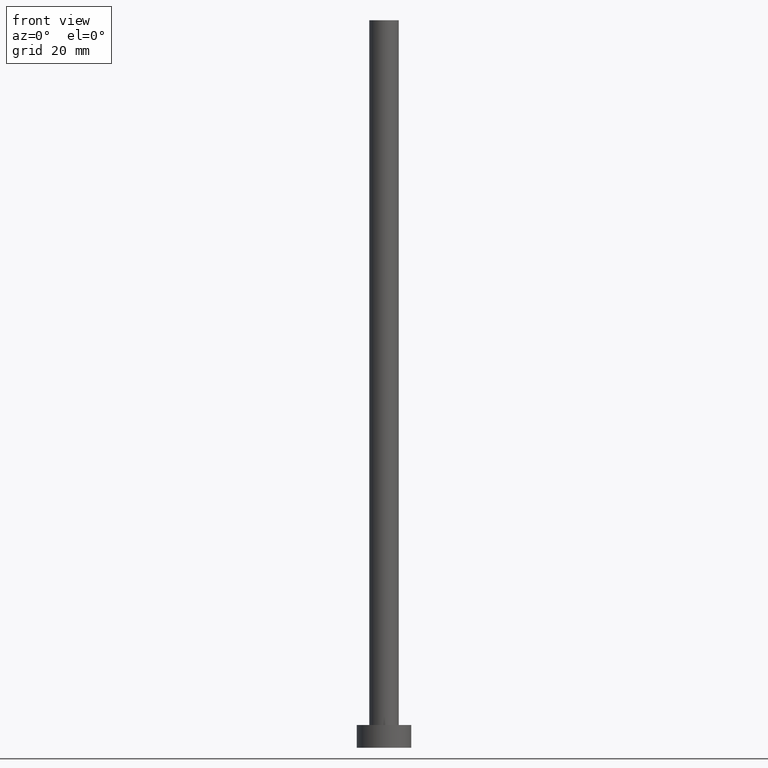
[diagram: clean part render]
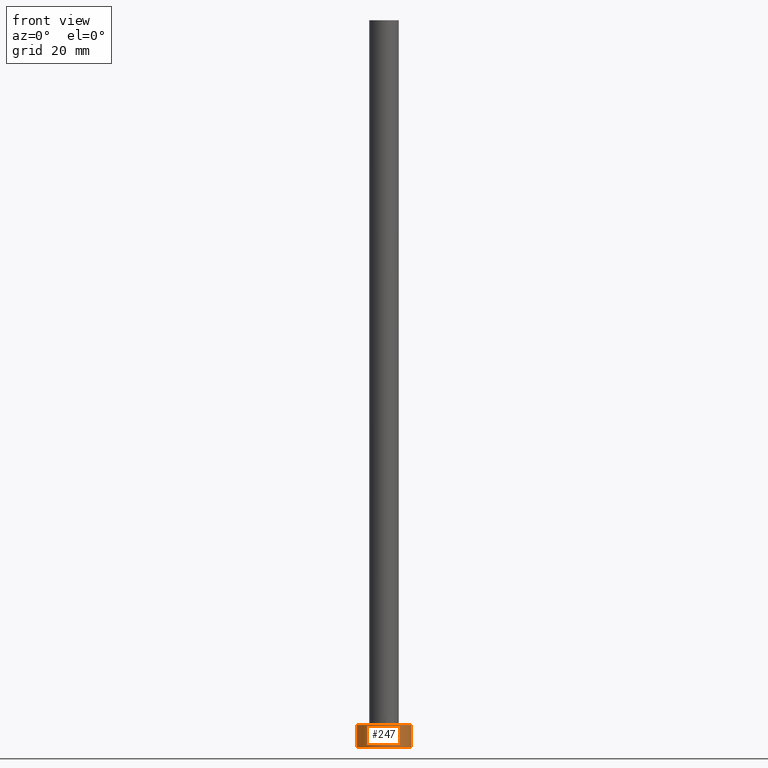
[diagram: same view with one face highlighted and labeled with its STEP entity id]
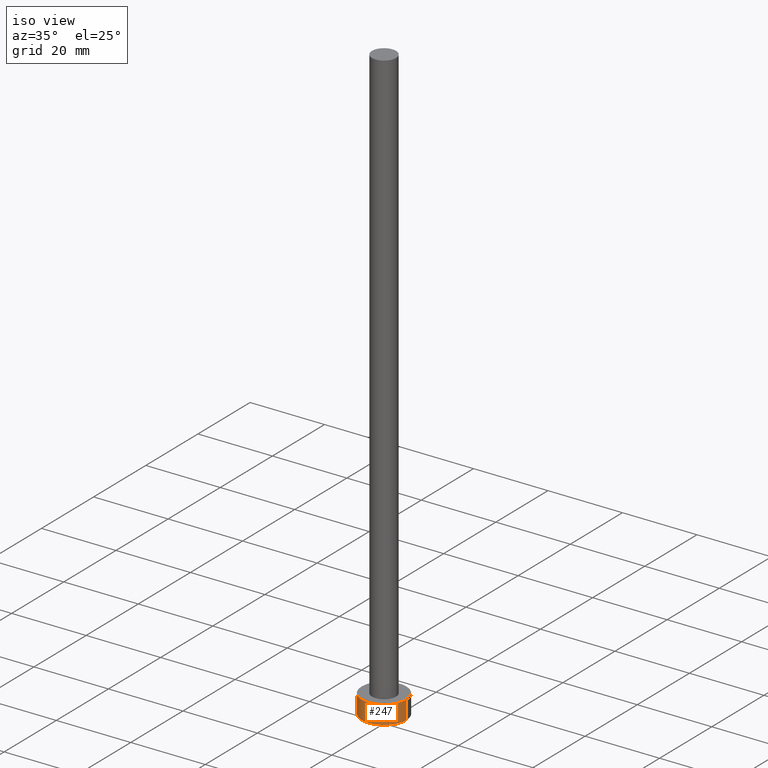
[diagram: same view with one face highlighted and labeled with its STEP entity id]
A machine part, front view. The second image highlights one B-rep face of the part: STEP entity #247.
A second angle (iso view) of the same face is appended — the face is thin or edge-on in the first view.
In plain terms, the highlighted cylindrical surface (edge-blend (fillet) strip) has radius 6 mm, axis along (-0, -0, -1).
Its self-contained STEP definition (entity closure, byte-faithful):
#2 = EDGE_LOOP ( 'NONE', ( #27, #63, #181, #227 ) ) ;
#4 = EDGE_CURVE ( 'NONE', #76, #45, #185, .T. ) ;
#7 = AXIS2_PLACEMENT_3D ( 'NONE', #60, #201, #26 ) ;
#15 = DIRECTION ( 'NONE',  ( -0.000000000000000000, -0.000000000000000000, -1.000000000000000000 ) ) ;
#16 = CARTESIAN_POINT ( 'NONE',  ( 0.000000000000000000, 0.000000000000000000, 0.000000000000000000 ) ) ;
#21 = CIRCLE ( 'NONE', #103, 6.000000000000000888 ) ;
#22 = AXIS2_PLACEMENT_3D ( 'NONE', #146, #234, #180 ) ;
#26 = DIRECTION ( 'NONE',  ( -1.000000000000000000, 0.000000000000000000, 0.000000000000000000 ) ) ;
#27 = ORIENTED_EDGE ( 'NONE', *, *, #4, .F. ) ;
#41 = LINE ( 'NONE', #113, #244 ) ;
#45 = VERTEX_POINT ( 'NONE', #52 ) ;
#52 = CARTESIAN_POINT ( 'NONE',  ( 6.000000000000000888, 7.347880794884120722E-16, 0.000000000000000000 ) ) ;
#60 = CARTESIAN_POINT ( 'NONE',  ( 0.000000000000000000, 0.000000000000000000, 5.000000000000000000 ) ) ;
#63 = ORIENTED_EDGE ( 'NONE', *, *, #224, .F. ) ;
#76 = VERTEX_POINT ( 'NONE', #197 ) ;
#97 = CARTESIAN_POINT ( 'NONE',  ( -6.000000000000000888, 0.000000000000000000, 5.000000000000000000 ) ) ;
#103 = AXIS2_PLACEMENT_3D ( 'NONE', #16, #237, #218 ) ;
#113 = CARTESIAN_POINT ( 'NONE',  ( -6.000000000000000888, 0.000000000000000000, 5.000000000000000000 ) ) ;
#114 = EDGE_CURVE ( 'NONE', #243, #142, #41, .T. ) ;
#130 = CARTESIAN_POINT ( 'NONE',  ( 6.000000000000000888, 7.347880794884120722E-16, 5.000000000000000000 ) ) ;
#132 = CIRCLE ( 'NONE', #22, 6.000000000000000888 ) ;
#142 = VERTEX_POINT ( 'NONE', #150 ) ;
#146 = CARTESIAN_POINT ( 'NONE',  ( 0.000000000000000000, 0.000000000000000000, 5.000000000000000000 ) ) ;
#150 = CARTESIAN_POINT ( 'NONE',  ( -6.000000000000000888, 0.000000000000000000, 0.000000000000000000 ) ) ;
#157 = EDGE_CURVE ( 'NONE', #142, #45, #21, .T. ) ;
#180 = DIRECTION ( 'NONE',  ( 1.000000000000000000, 0.000000000000000000, 0.000000000000000000 ) ) ;
#181 = ORIENTED_EDGE ( 'NONE', *, *, #114, .T. ) ;
#185 = LINE ( 'NONE', #130, #216 ) ;
#197 = CARTESIAN_POINT ( 'NONE',  ( 6.000000000000000888, 7.347880794884120722E-16, 5.000000000000000000 ) ) ;
#201 = DIRECTION ( 'NONE',  ( -0.000000000000000000, -0.000000000000000000, -1.000000000000000000 ) ) ;
#210 = DIRECTION ( 'NONE',  ( -0.000000000000000000, -0.000000000000000000, -1.000000000000000000 ) ) ;
#216 = VECTOR ( 'NONE', #210, 1000.000000000000000 ) ;
#218 = DIRECTION ( 'NONE',  ( 1.000000000000000000, 0.000000000000000000, 0.000000000000000000 ) ) ;
#224 = EDGE_CURVE ( 'NONE', #243, #76, #132, .T. ) ;
#225 = FACE_OUTER_BOUND ( 'NONE', #2, .T. ) ;
#227 = ORIENTED_EDGE ( 'NONE', *, *, #157, .T. ) ;
#234 = DIRECTION ( 'NONE',  ( 0.000000000000000000, 0.000000000000000000, 1.000000000000000000 ) ) ;
#237 = DIRECTION ( 'NONE',  ( 0.000000000000000000, 0.000000000000000000, 1.000000000000000000 ) ) ;
#241 = CYLINDRICAL_SURFACE ( 'NONE', #7, 6.000000000000000888 ) ;
#243 = VERTEX_POINT ( 'NONE', #97 ) ;
#244 = VECTOR ( 'NONE', #15, 1000.000000000000000 ) ;
#247 = ADVANCED_FACE ( 'NONE', ( #225 ), #241, .T. ) ;